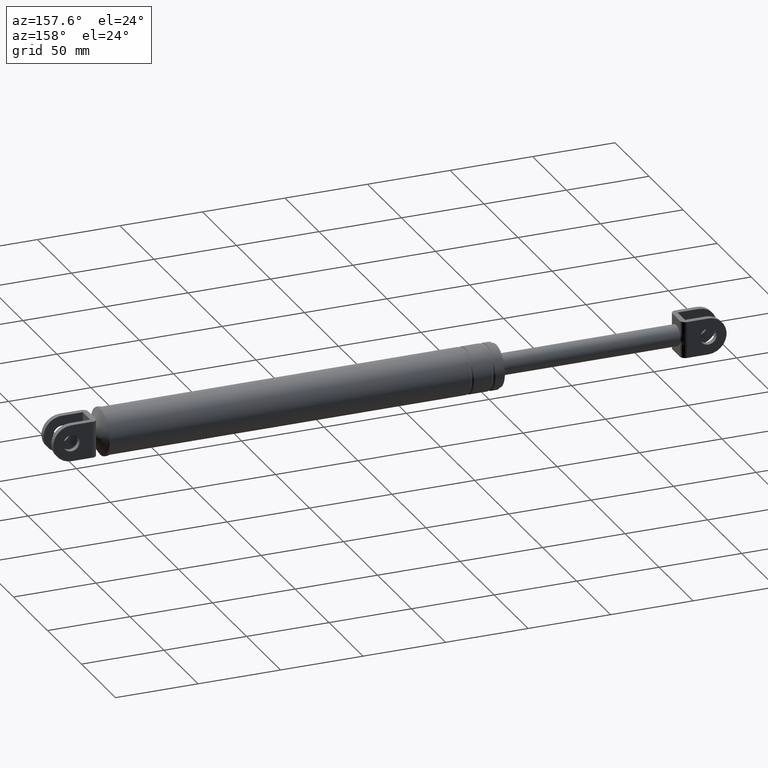
[diagram: clean part render]
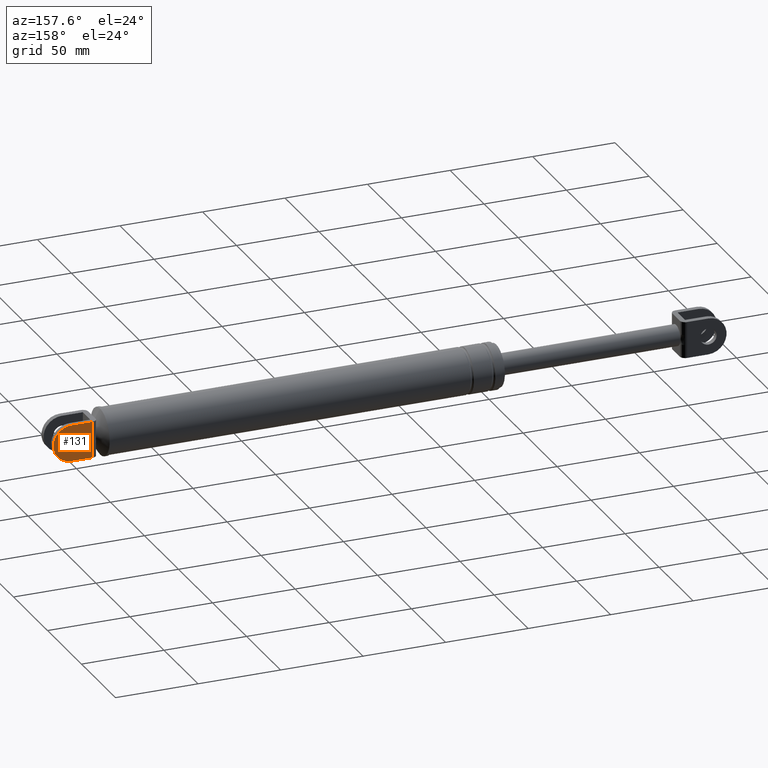
[diagram: same view with one face highlighted and labeled with its STEP entity id]
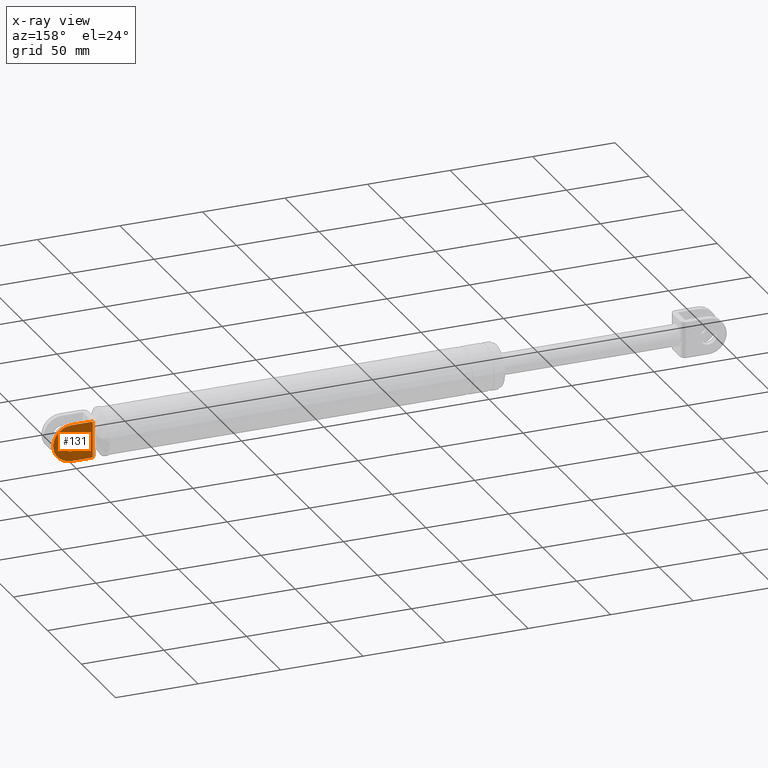
[diagram: x-ray of the same camera — body ghosted, the highlighted face saturated]
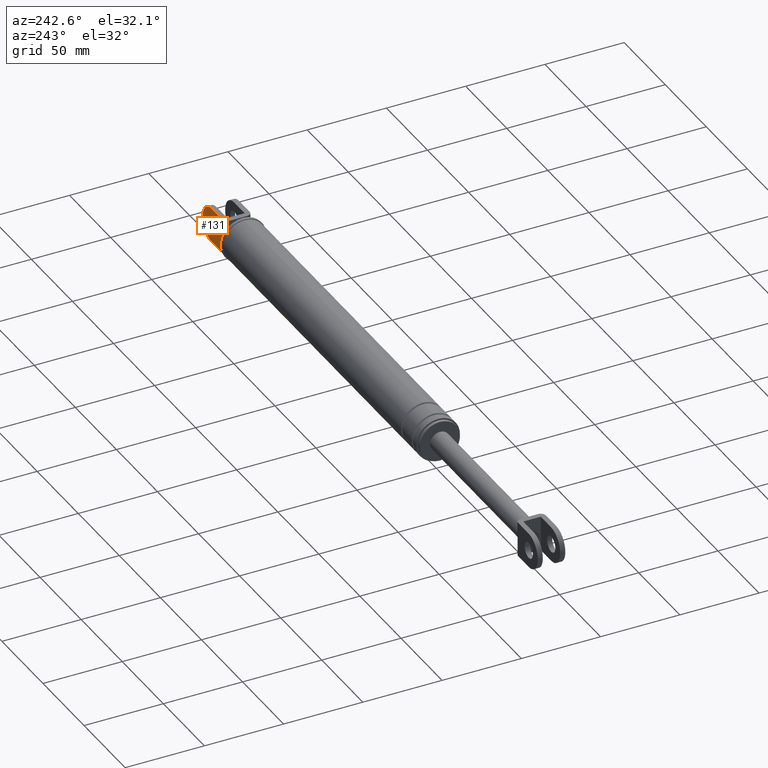
[diagram: same view with one face highlighted and labeled with its STEP entity id]
A machine part, auxiliary view. The second image highlights one B-rep face of the part: STEP entity #131.
The next image is the same camera in x-ray: the body ghosted, the highlighted face saturated — about 0% of this face is hidden behind the body in this view.
A second angle (auxiliary view) of the same face is appended — the face is thin or edge-on in the first view.
In plain terms, the highlighted planar face has unit normal (0, 1, 0).
Its self-contained STEP definition (entity closure, byte-faithful):
#131=ADVANCED_FACE('',(#372,#373),#371,.T.);
#371=PLANE('',#1337);
#372=FACE_OUTER_BOUND('',#1338,.T.);
#373=FACE_BOUND('',#1339,.T.);
#1334=CARTESIAN_POINT('',(3.91436495634E+002,8.69999700000E+000,1.66525492006E+002));
#1335=DIRECTION('',(0.00000000000E+000,1.00000000000E+000,0.00000000000E+000));
#1336=DIRECTION('',(0.00000000000E+000,0.00000000000E+000,1.00000000000E+000));
#1337=AXIS2_PLACEMENT_3D('',#1334,#1335,#1336);
#1338=EDGE_LOOP('',(#2025,#2026,#2027,#2028,#2029,#2030));
#1339=EDGE_LOOP('',(#2031,#2032));
#2025=ORIENTED_EDGE('',*,*,#2273,.F.);
#2026=ORIENTED_EDGE('',*,*,#2300,.T.);
#2027=ORIENTED_EDGE('',*,*,#2302,.T.);
#2028=ORIENTED_EDGE('',*,*,#2242,.T.);
#2029=ORIENTED_EDGE('',*,*,#2259,.T.);
#2030=ORIENTED_EDGE('',*,*,#2247,.F.);
#2031=ORIENTED_EDGE('',*,*,#2303,.T.);
#2032=ORIENTED_EDGE('',*,*,#2304,.T.);
#2242=EDGE_CURVE('',#2405,#2397,#2406,.T.);
#2247=EDGE_CURVE('',#2433,#2440,#2441,.T.);
#2259=EDGE_CURVE('',#2397,#2440,#2523,.T.);
#2273=EDGE_CURVE('',#2612,#2433,#2619,.T.);
#2300=EDGE_CURVE('',#2612,#2790,#2797,.T.);
#2302=EDGE_CURVE('',#2790,#2405,#2809,.T.);
#2303=EDGE_CURVE('',#2815,#2816,#2817,.T.);
#2304=EDGE_CURVE('',#2816,#2815,#2823,.T.);
#2397=VERTEX_POINT('',#3431);
#2405=VERTEX_POINT('',#3437);
#2406=LINE('',#3438,#3439);
#2433=VERTEX_POINT('',#3455);
#2440=VERTEX_POINT('',#3459);
#2441=CIRCLE('',#3463,1.10000000000E+001);
#2523=LINE('',#3517,#3518);
#2612=VERTEX_POINT('',#3570);
#2619=LINE('',#3575,#3576);
#2790=VERTEX_POINT('',#3689);
#2797=LINE('',#3694,#3695);
#2809=(BOUNDED_CURVE() B_SPLINE_CURVE(3,(#3701,#3702,#3703,#3704,#3705,#3706,#3707,#3708,#3709,#3710),.UNSPECIFIED.,.F.,.F.) B_SPLINE_CURVE_WITH_KNOTS((4,2,2,2,4),(0.00000000000E+000,1.19890467989E-003,2.39780935978E-003,3.59671403966E-003,4.79561871955E-003),.UNSPECIFIED.) CURVE() GEOMETRIC_REPRESENTATION_ITEM() RATIONAL_B_SPLINE_CURVE((1.00000000000E+000,1.00000000000E+000,1.00000000000E+000,1.00000000000E+000,1.00000000000E+000,1.00000000000E+000,1.00000000000E+000,1.00000000000E+000,1.00000000000E+000,1.00000000000E+000)) REPRESENTATION_ITEM('') );
#2815=VERTEX_POINT('',#3711);
#2816=VERTEX_POINT('',#3712);
#2817=CIRCLE('',#3716,5.00000000000E+000);
#2823=CIRCLE('',#3720,5.00000000000E+000);
#3431=CARTESIAN_POINT('',(3.93859735358E+002,8.69999700000E+000,1.90725493158E+002));
#3437=CARTESIAN_POINT('',(3.93859735358E+002,8.69999700000E+000,1.82123415800E+002));
#3438=CARTESIAN_POINT('',(3.93859735358E+002,8.69999700000E+000,1.82123415800E+002));
#3439=VECTOR('',#3440,8.60207735738E+000);
#3440=DIRECTION('',(0.00000000000E+000,0.00000000000E+000,1.00000000000E+000));
#3455=CARTESIAN_POINT('',(4.06659734398E+002,8.69999700000E+000,1.68725493158E+002));
#3459=CARTESIAN_POINT('',(4.06659734398E+002,8.69999700000E+000,1.90725493158E+002));
#3460=CARTESIAN_POINT('',(4.06659735358E+002,8.69999700000E+000,1.79725493158E+002));
#3461=DIRECTION('',(0.00000000000E+000,-1.00000000000E+000,-0.00000000000E+000));
#3462=DIRECTION('',(-8.72664456670E-008,0.00000000000E+000,-1.00000000000E+000));
#3463=AXIS2_PLACEMENT_3D('',#3460,#3461,#3462);
#3517=CARTESIAN_POINT('',(3.93859735358E+002,8.69999700000E+000,1.90725493158E+002));
#3518=VECTOR('',#3519,1.27999990401E+001);
#3519=DIRECTION('',(1.00000000000E+000,0.00000000000E+000,0.00000000000E+000));
#3570=CARTESIAN_POINT('',(3.93859735358E+002,8.69999700000E+000,1.68725493158E+002));
#3575=CARTESIAN_POINT('',(3.93859735358E+002,8.69999700000E+000,1.68725493158E+002));
#3576=VECTOR('',#3577,1.27999990401E+001);
#3577=DIRECTION('',(1.00000000000E+000,0.00000000000E+000,0.00000000000E+000));
#3689=CARTESIAN_POINT('',(3.93859735358E+002,8.69999700000E+000,1.77327570515E+002));
#3694=CARTESIAN_POINT('',(3.93859735358E+002,8.69999700000E+000,1.68725493158E+002));
#3695=VECTOR('',#3696,8.60207735738E+000);
#3696=DIRECTION('',(0.00000000000E+000,0.00000000000E+000,1.00000000000E+000));
#3701=CARTESIAN_POINT('',(3.93859735358E+002,8.69999700000E+000,1.77327570515E+002));
#3702=CARTESIAN_POINT('',(3.93859735358E+002,8.69999700000E+000,1.77727226601E+002));
#3703=CARTESIAN_POINT('',(3.93848110013E+002,8.69999700000E+000,1.78126762961E+002));
#3704=CARTESIAN_POINT('',(3.93828251087E+002,8.69999700000E+000,1.78925870612E+002));
#3705=CARTESIAN_POINT('',(3.93820435505E+002,8.69999700000E+000,1.79325446207E+002));
#3706=CARTESIAN_POINT('',(3.93820426518E+002,8.69999700000E+000,1.80124758287E+002));
#3707=CARTESIAN_POINT('',(3.93828237191E+002,8.69999700000E+000,1.80524516494E+002));
#3708=CARTESIAN_POINT('',(3.93848100663E+002,8.69999700000E+000,1.81323887093E+002));
#3709=CARTESIAN_POINT('',(3.93859735358E+002,8.69999700000E+000,1.81723539672E+002));
#3710=CARTESIAN_POINT('',(3.93859735358E+002,8.69999700000E+000,1.82123415800E+002));
#3711=CARTESIAN_POINT('',(4.06659735358E+002,8.69999700000E+000,1.74725493158E+002));
#3712=CARTESIAN_POINT('',(4.06659735358E+002,8.69999700000E+000,1.84725493158E+002));
#3713=CARTESIAN_POINT('',(4.06659735358E+002,8.69999700000E+000,1.79725493158E+002));
#3714=DIRECTION('',(0.00000000000E+000,-1.00000000000E+000,0.00000000000E+000));
#3715=DIRECTION('',(-0.00000000000E+000,-0.00000000000E+000,-1.00000000000E+000));
#3716=AXIS2_PLACEMENT_3D('',#3713,#3714,#3715);
#3717=CARTESIAN_POINT('',(4.06659735358E+002,8.69999700000E+000,1.79725493158E+002));
#3718=DIRECTION('',(0.00000000000E+000,-1.00000000000E+000,0.00000000000E+000));
#3719=DIRECTION('',(-0.00000000000E+000,-0.00000000000E+000,-1.00000000000E+000));
#3720=AXIS2_PLACEMENT_3D('',#3717,#3718,#3719);